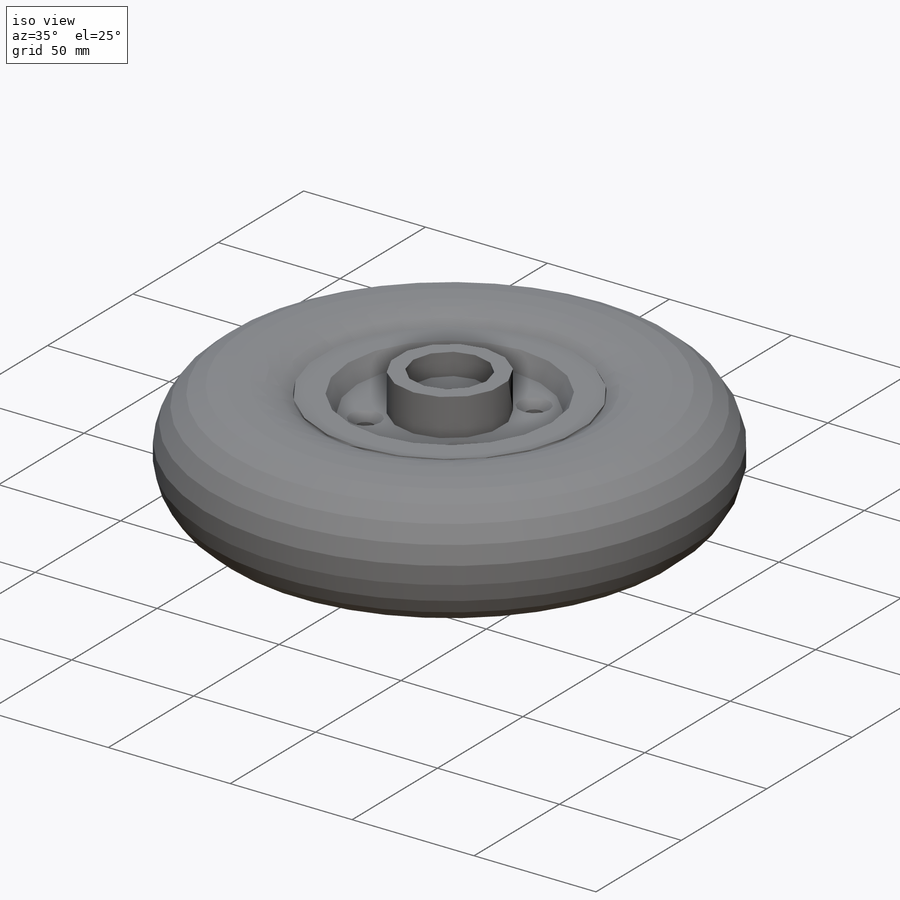
[diagram: iso view]
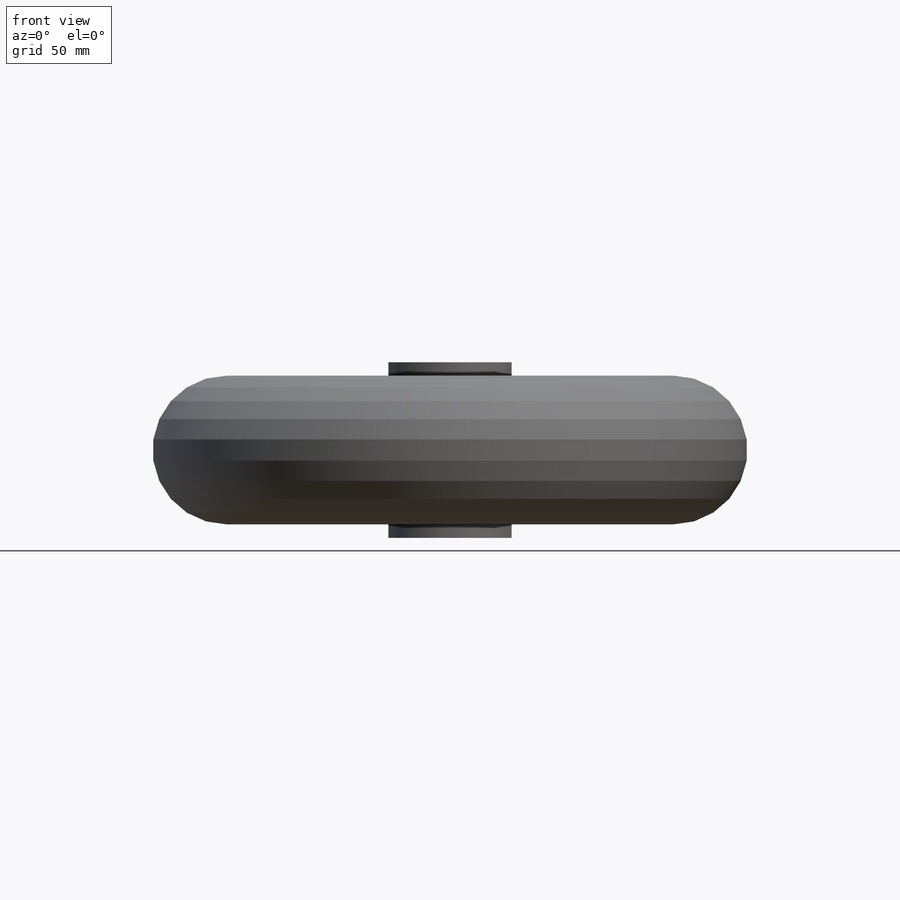
[diagram: front view]
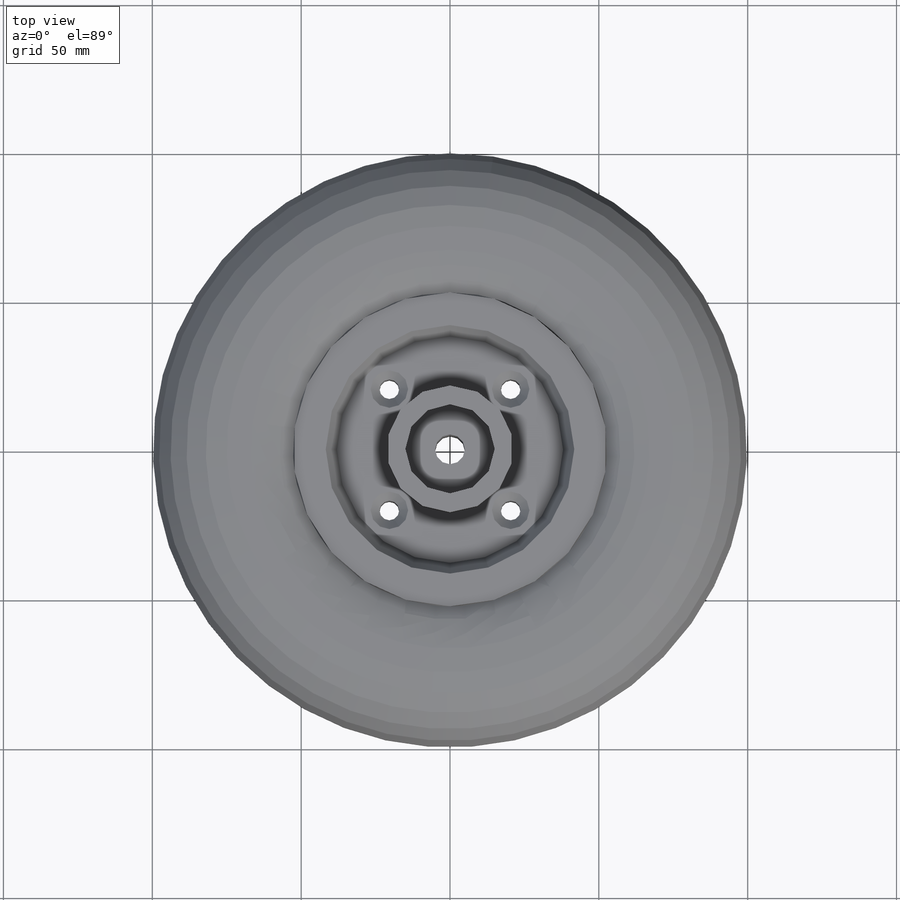
[diagram: top view]
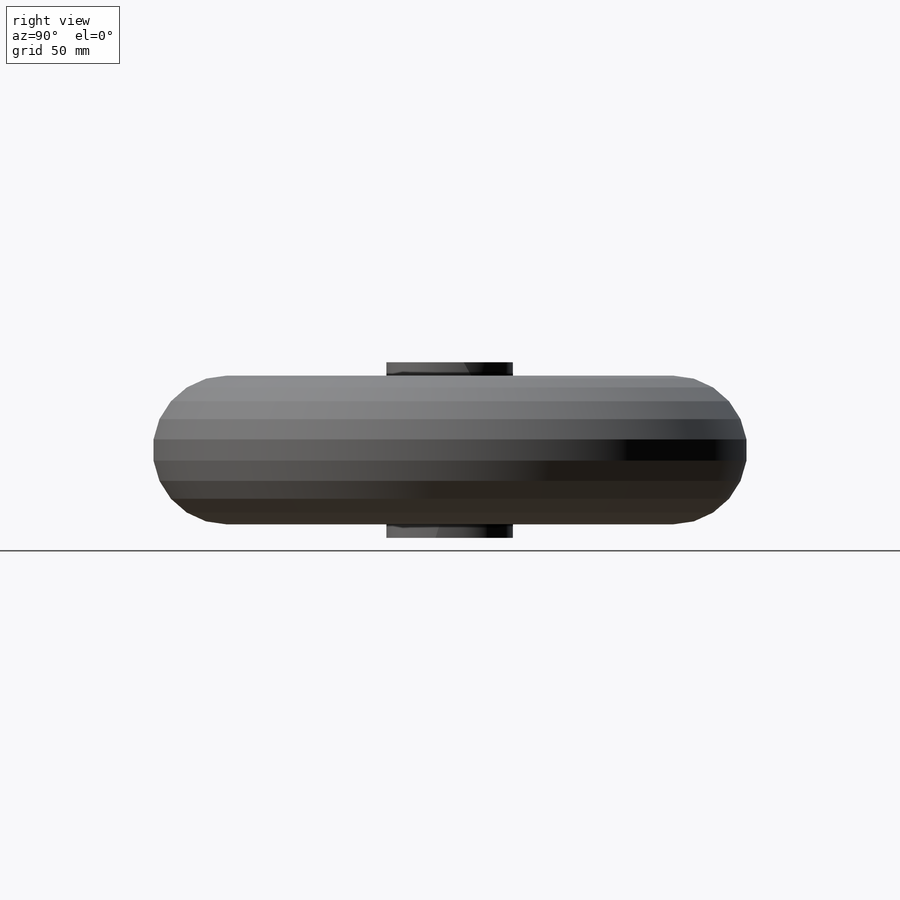
[diagram: right view]
SOLIDWORKS PART (.sldprt)
format: sldprt  version: not decoded by parser v0  size: 236,544 bytes
history: native  units: mm
features: sketch x4, plane x3, revolve x2, material x1, hole x1 (+10 scaffold rows collapsed)
feature tree (21):
  scaffold x10  (default folders/planes/origin — collapsed)
  material  "材質 <未指定>"
  plane  "前基準面"
  plane  "上基準面"
  plane  "右基準面"
  sketch  "草圖1"  dims[c1.D1=59.0mm c1.D2=42.5mm c1.D3=42.5mm c1.D4=105.5mm c1.D5=30.0mm c1.D6=10.0mm c1.D7=9.0mm c1.D8=7.0mm c1.D9=11.0mm c1.D10=7.0mm c2.D10=60.0deg c3.D10=76.0mm]
  revolve  "旋轉1"  Angle=360deg
  sketch  "草圖2"  dims[D1=50.0mm D2=200.0mm D3=8.0mm]
  revolve  "旋轉2"  Angle=360deg
  hole  "M6 平錐坑頭螺釘的錐孔1"  [1 undecoded]
  sketch  "草圖4"  dims[D1=40.75mm D2=40.75mm]
  sketch  "草圖3"  dims[hole-wizard template sketch: 54 standard entries collapsed; hole parameters kept: c17.貫穿孔直徑=6.6mm c17.貫穿孔深度=43.75mm c17.近端錐孔直徑=12.6mm c17.D4=~3.666174mm c17.近端錐孔角度=90.0deg]
decode coverage: 6 of 7 modeling features carry decoded parameters
note: ~ marks probable driven/reference dimensions
note: 1 parameter value undecoded
note: suppression state not decoded; provenance and decode notes live in map.json
